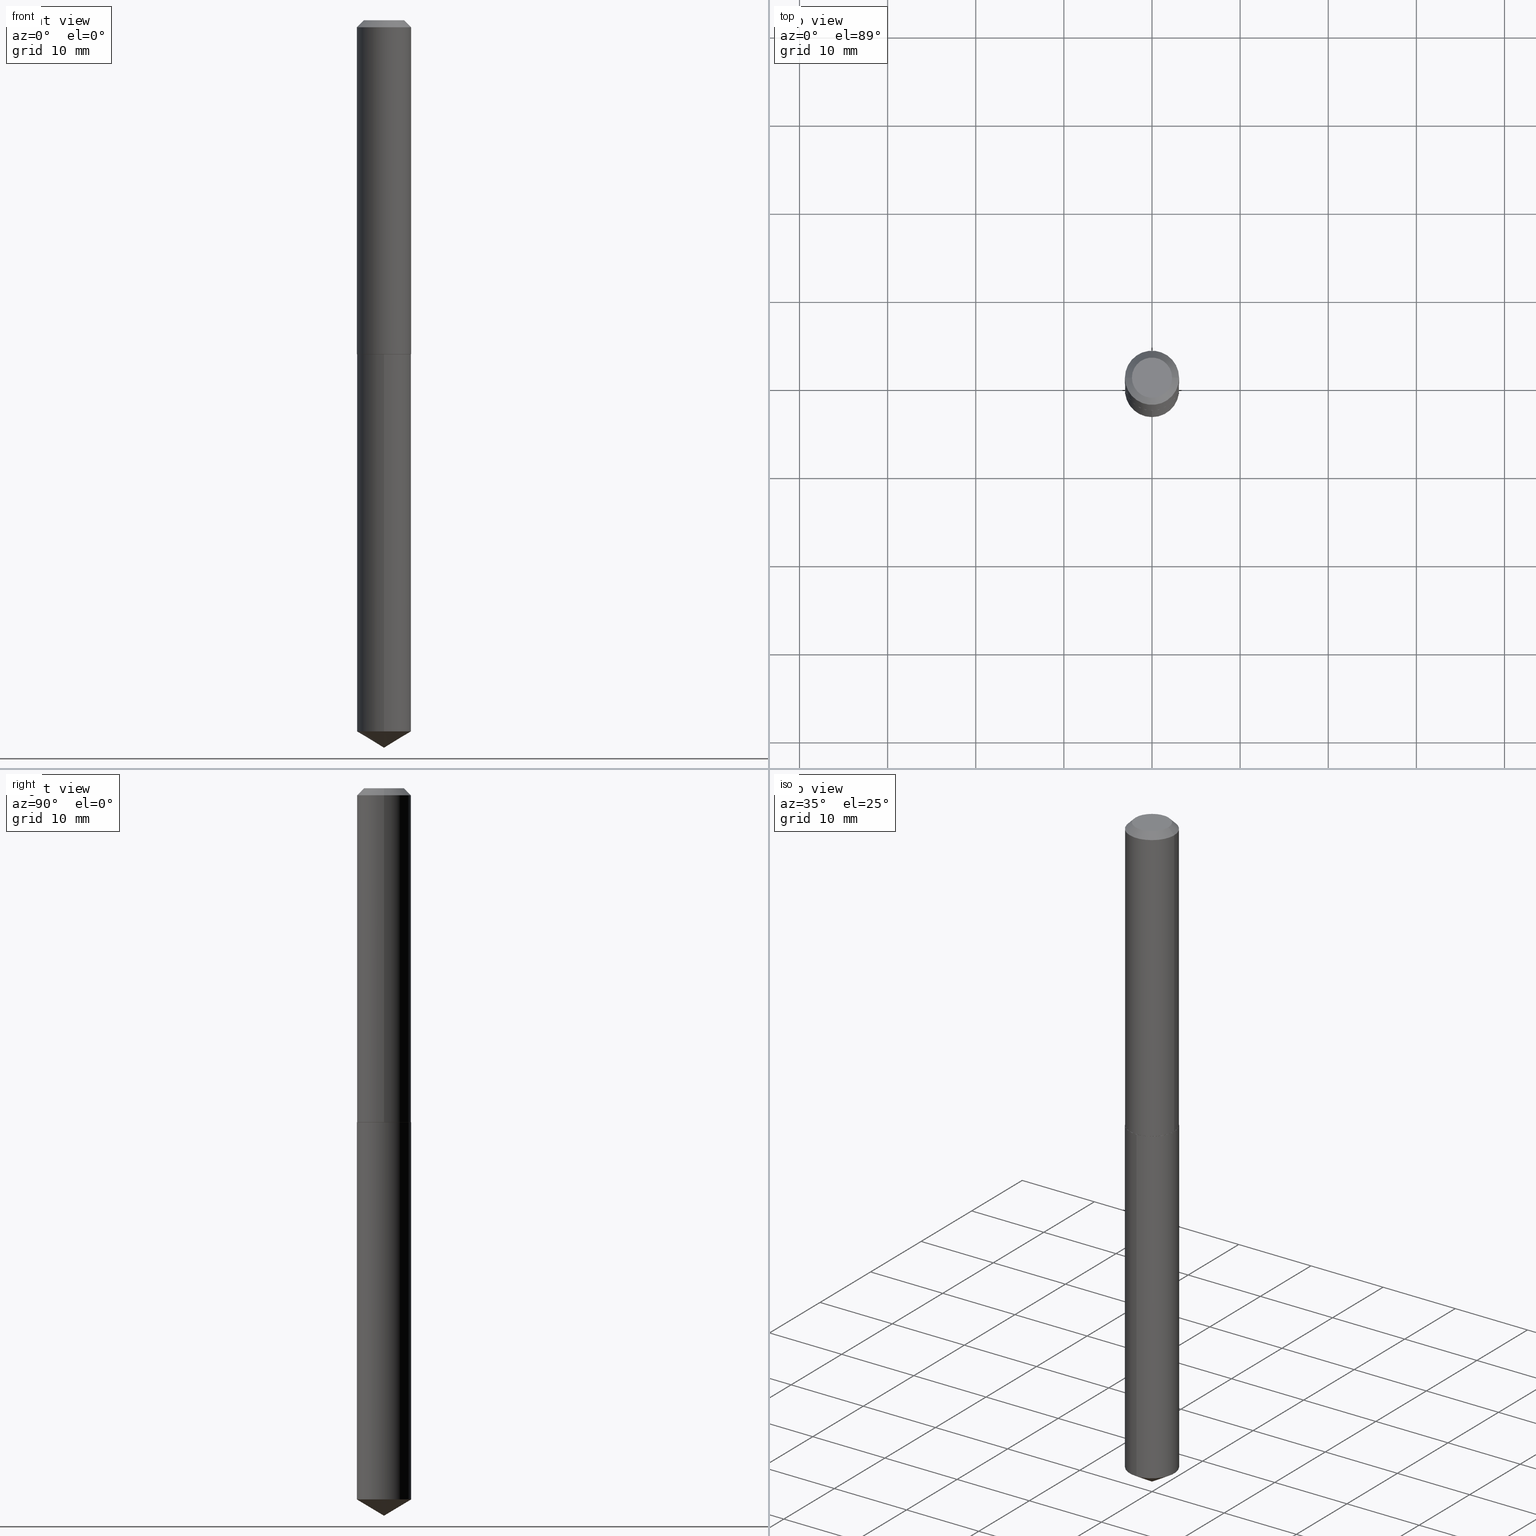
[diagram: canonical four-view strip — front | top / right | iso, engineering-drawing reading convention]
A machine part, canonical four-view strip (front | top / right | iso — engineering-drawing reading convention). The complete STEP part file that produces these views, byte-faithful:
ISO-10303-21;
HEADER;
FILE_DESCRIPTION (( 'STEP AP203' ),
    '1' );
FILE_NAME ('51203.STEP',
    '2024-04-22T18:35:36',
    ( '' ),
    ( '' ),
    'SwSTEP 2.0',
    'SolidWorks 2023',
    '' );
FILE_SCHEMA (( 'CONFIG_CONTROL_DESIGN' ));
ENDSEC;

DATA;
#1 = APPROVAL_DATE_TIME ( #114, #215 ) ;
#2 = CARTESIAN_POINT ( 'NONE',  ( 7.770935132618860075E-29, -1.109209844678102390E-14, -3.177295865097665484 ) ) ;
#3 = CARTESIAN_POINT ( 'NONE',  ( 0.08975000000000001033, -7.774793724345998599E-16, 2.449293598343795834E-19 ) ) ;
#4 = DIRECTION ( 'NONE',  ( -2.446036781530787415E-29, 3.490667965821024294E-15, 1.000000000000000000 ) ) ;
#5 = LINE ( 'NONE', #9, #340 ) ;
#6 = AXIS2_PLACEMENT_3D ( 'NONE', #236, #231, #297 ) ;
#7 = COORDINATED_UNIVERSAL_TIME_OFFSET ( 5, 0, .BEHIND. ) ;
#8 = ORIENTED_EDGE ( 'NONE', *, *, #304, .T. ) ;
#9 = CARTESIAN_POINT ( 'NONE',  ( -0.1210000000000001075, 8.597567102697219885E-16, -5.951911459208441511E-30 ) ) ;
#10 = ADVANCED_FACE ( 'NONE', ( #80 ), #129, .T. ) ;
#11 = CYLINDRICAL_SURFACE ( 'NONE', #95, 0.1210000000000001075 ) ;
#12 =( GEOMETRIC_REPRESENTATION_CONTEXT ( 3 ) GLOBAL_UNCERTAINTY_ASSIGNED_CONTEXT ( ( #371 ) ) GLOBAL_UNIT_ASSIGNED_CONTEXT ( ( #221, #45, #162 ) ) REPRESENTATION_CONTEXT ( 'NONE', 'WORKASPACE' ) );
#13 = PRODUCT_DEFINITION_FORMATION_WITH_SPECIFIED_SOURCE ( 'ANY', '', #201, .NOT_KNOWN. ) ;
#14 = DIRECTION ( 'NONE',  ( 1.000000000000000000, -6.982962677686265922E-15, 0.000000000000000000 ) ) ;
#15 = ORIENTED_EDGE ( 'NONE', *, *, #304, .F. ) ;
#16 = DIRECTION ( 'NONE',  ( 1.000000000000000000, -6.982962677686265922E-15, 4.876176775795935793E-29 ) ) ;
#17 = EDGE_LOOP ( 'NONE', ( #383, #105, #15 ) ) ;
#18 = DIRECTION ( 'NONE',  ( 1.000000000000000000, 0.000000000000000000, 0.000000000000000000 ) ) ;
#19 = EDGE_CURVE ( 'NONE', #108, #369, #52, .T. ) ;
#20 = DIMENSIONAL_EXPONENTS ( 1.000000000000000000, 0.000000000000000000, 0.000000000000000000, 0.000000000000000000, 0.000000000000000000, 0.000000000000000000, 0.000000000000000000 ) ;
#21 = ORIENTED_EDGE ( 'NONE', *, *, #244, .F. ) ;
#22 = AXIS2_PLACEMENT_3D ( 'NONE', #268, #266, #61 ) ;
#23 = AXIS2_PLACEMENT_3D ( 'NONE', #77, #214, #141 ) ;
#24 = ADVANCED_BREP_SHAPE_REPRESENTATION ( '51203', ( #39, #41, #217 ), #12 ) ;
#25 = CARTESIAN_POINT ( 'NONE',  ( 3.647416724425131194E-29, -5.207544416884551827E-15, -1.491500000000000270 ) ) ;
#26 = APPROVAL ( #365, 'UNSPECIFIED' ) ;
#27 = ORIENTED_EDGE ( 'NONE', *, *, #132, .F. ) ;
#28 = VERTEX_POINT ( 'NONE', #48 ) ;
#29 = EDGE_CURVE ( 'NONE', #134, #369, #327, .T. ) ;
#30 = CALENDAR_DATE ( 2024, 22, 4 ) ;
#31 = LINE ( 'NONE', #361, #43 ) ;
#32 = SHAPE_DEFINITION_REPRESENTATION ( #149, #24 ) ;
#33 = CYLINDRICAL_SURFACE ( 'NONE', #334, 0.1210000000000000103 ) ;
#34 = EDGE_CURVE ( 'NONE', #56, #368, #125, .T. ) ;
#35 = DIRECTION ( 'NONE',  ( -2.445468806185136597E-29, 3.491481338843145583E-15, 1.000000000000000000 ) ) ;
#36 = CARTESIAN_POINT ( 'NONE',  ( 8.597567102697990011E-16, 0.1209999999999889081, -3.177295865097665928 ) ) ;
#37 = DIRECTION ( 'NONE',  ( 0.7071067811867647324, -2.468850131084532135E-15, 0.7071067811863303021 ) ) ;
#38 = CARTESIAN_POINT ( 'NONE',  ( -0.1205000000000002597, -4.350436933788939462E-15, -1.491999999999999771 ) ) ;
#39 = MANIFOLD_SOLID_BREP ( 'Body-Move/Copy2[1]', #323 ) ;
#40 = EDGE_CURVE ( 'NONE', #134, #307, #355, .T. ) ;
#41 = MANIFOLD_SOLID_BREP ( 'Body-Move/Copy2[2]', #316 ) ;
#42 = COORDINATED_UNIVERSAL_TIME_OFFSET ( 5, 0, .BEHIND. ) ;
#43 = VECTOR ( 'NONE', #58, 39.37007874015748854 ) ;
#44 = DIRECTION ( 'NONE',  ( -2.446036781530787695E-29, 3.490667965821024294E-15, 1.000000000000000000 ) ) ;
#45 =( NAMED_UNIT ( * ) PLANE_ANGLE_UNIT ( ) SI_UNIT ( $, .RADIAN. ) );
#46 = CONICAL_SURFACE ( 'NONE', #364, 0.1210000000000000242, 0.7853981633974450594 ) ;
#47 = FACE_OUTER_BOUND ( 'NONE', #346, .T. ) ;
#48 = CARTESIAN_POINT ( 'NONE',  ( -8.449384839999604942E-16, -0.1210000000000111126, -3.177295865097664596 ) ) ;
#49 = ADVANCED_FACE ( 'NONE', ( #260 ), #75, .T. ) ;
#50 = ORIENTED_EDGE ( 'NONE', *, *, #66, .T. ) ;
#51 = ADVANCED_FACE ( 'NONE', ( #354 ), #151, .T. ) ;
#52 = LINE ( 'NONE', #103, #258 ) ;
#53 = AXIS2_PLACEMENT_3D ( 'NONE', #306, #107, #16 ) ;
#54 = APPLICATION_PROTOCOL_DEFINITION ( 'international standard', 'config_control_design', 1994, #219 ) ;
#55 = ORIENTED_EDGE ( 'NONE', *, *, #81, .F. ) ;
#56 = VERTEX_POINT ( 'NONE', #88 ) ;
#57 = APPROVAL_ROLE ( '' ) ;
#58 = DIRECTION ( 'NONE',  ( -5.985567269335945224E-15, -0.8571673007021107793, 0.5150380749100564870 ) ) ;
#59 = APPROVAL_PERSON_ORGANIZATION ( #89, #215, #229 ) ;
#60 = CALENDAR_DATE ( 2024, 22, 4 ) ;
#61 = DIRECTION ( 'NONE',  ( 1.000000000000000000, -6.982962677686265922E-15, 0.000000000000000000 ) ) ;
#62 = CARTESIAN_POINT ( 'NONE',  ( 3.648639458828223995E-29, -5.209290157553973331E-15, -1.491999999999999993 ) ) ;
#63 = CC_DESIGN_DATE_AND_TIME_ASSIGNMENT ( #124, #209, ( #163 ) ) ;
#64 = FACE_OUTER_BOUND ( 'NONE', #350, .T. ) ;
#65 = FACE_OUTER_BOUND ( 'NONE', #216, .T. ) ;
#66 = EDGE_CURVE ( 'NONE', #218, #185, #122, .T. ) ;
#67 = APPROVAL_DATE_TIME ( #294, #98 ) ;
#68 = EDGE_LOOP ( 'NONE', ( #167, #382, #248, #338 ) ) ;
#69 = EDGE_CURVE ( 'NONE', #284, #108, #325, .T. ) ;
#70 = DIRECTION ( 'NONE',  ( -2.445468806185136597E-29, 3.491481338843145583E-15, 1.000000000000000000 ) ) ;
#71 = AXIS2_PLACEMENT_3D ( 'NONE', #343, #378, #79 ) ;
#72 = ORIENTED_EDGE ( 'NONE', *, *, #109, .F. ) ;
#73 = DIRECTION ( 'NONE',  ( 0.000000000000000000, 0.000000000000000000, 1.000000000000000000 ) ) ;
#74 = DIRECTION ( 'NONE',  ( 0.7071067811865452413, -7.319954787623248157E-15, -0.7071067811865497932 ) ) ;
#75 = CONICAL_SURFACE ( 'NONE', #292, 0.1210000000000000242, 0.7853981633974450594 ) ;
#76 = CC_DESIGN_APPROVAL ( #215, ( #163 ) ) ;
#77 = CARTESIAN_POINT ( 'NONE',  ( 3.647416724425131194E-29, -5.207544416884551827E-15, -1.491500000000000270 ) ) ;
#78 = ORIENTED_EDGE ( 'NONE', *, *, #19, .F. ) ;
#79 = DIRECTION ( 'NONE',  ( 1.000000000000000000, -6.982962677686267499E-15, 4.876187661634337776E-29 ) ) ;
#80 = FACE_OUTER_BOUND ( 'NONE', #17, .T. ) ;
#81 = EDGE_CURVE ( 'NONE', #218, #28, #31, .T. ) ;
#82 = LINE ( 'NONE', #193, #210 ) ;
#83 = ORIENTED_EDGE ( 'NONE', *, *, #69, .T. ) ;
#84 = DATE_AND_TIME ( #348, #106 ) ;
#85 = ORIENTED_EDGE ( 'NONE', *, *, #137, .F. ) ;
#86 = PERSON_AND_ORGANIZATION_ROLE ( 'creator' ) ;
#87 = PRODUCT_RELATED_PRODUCT_CATEGORY ( 'detail', '', ( #201 ) ) ;
#88 = CARTESIAN_POINT ( 'NONE',  ( 8.597567102697990997E-16, 0.1209999999999947923, -1.492000000000000659 ) ) ;
#89 = PERSON_AND_ORGANIZATION ( #140, #286 ) ;
#90 = DIRECTION ( 'NONE',  ( 6.090539988449780802E-15, 0.8571673007021143320, 0.5150380749100504918 ) ) ;
#91 = CIRCLE ( 'NONE', #207, 0.1210000000000000103 ) ;
#92 = CARTESIAN_POINT ( 'NONE',  ( 8.597567102697576845E-16, 0.1209999999999947923, -1.492000000000000659 ) ) ;
#93 = DIRECTION ( 'NONE',  ( -6.982962677686264344E-15, -1.000000000000000000, 4.515451229197129137E-15 ) ) ;
#94 = DIRECTION ( 'NONE',  ( -2.446036781530787415E-29, 3.490667965821024294E-15, 1.000000000000000000 ) ) ;
#95 = AXIS2_PLACEMENT_3D ( 'NONE', #128, #130, #366 ) ;
#96 = DATE_AND_TIME ( #30, #182 ) ;
#97 = DIRECTION ( 'NONE',  ( -6.982962677686264344E-15, -1.000000000000000000, 4.515451229197129137E-15 ) ) ;
#98 = APPROVAL ( #324, 'UNSPECIFIED' ) ;
#99 = LOCAL_TIME ( 14, 35, 36.00000000000000000, #42 ) ;
#100 = EDGE_LOOP ( 'NONE', ( #379, #226, #299, #85 ) ) ;
#101 = ORIENTED_EDGE ( 'NONE', *, *, #19, .T. ) ;
#102 = CARTESIAN_POINT ( 'NONE',  ( 0.1210000000000000242, -9.540472758388873963E-16, -0.03125000000000020817 ) ) ;
#103 = CARTESIAN_POINT ( 'NONE',  ( 0.1210000000000000242, -9.392290495692044923E-16, -0.03125000000000020817 ) ) ;
#104 = DIRECTION ( 'NONE',  ( -2.446036781530787695E-29, 3.490667965821024294E-15, 1.000000000000000000 ) ) ;
#105 = ORIENTED_EDGE ( 'NONE', *, *, #81, .T. ) ;
#106 = LOCAL_TIME ( 14, 35, 36.00000000000000000, #7 ) ;
#107 = DIRECTION ( 'NONE',  ( -2.438088387897960049E-29, 3.491481338843145188E-15, 1.000000000000000000 ) ) ;
#108 = VERTEX_POINT ( 'NONE', #3 ) ;
#109 = EDGE_CURVE ( 'NONE', #253, #165, #285, .T. ) ;
#110 = PLANE ( 'NONE',  #245 ) ;
#111 = EDGE_LOOP ( 'NONE', ( #78, #190, #195, #257 ) ) ;
#112 = CARTESIAN_POINT ( 'NONE',  ( 3.648639458828223995E-29, -5.209290157553973331E-15, -1.491999999999999993 ) ) ;
#113 = EDGE_LOOP ( 'NONE', ( #241, #223 ) ) ;
#114 = DATE_AND_TIME ( #385, #99 ) ;
#115 = DIRECTION ( 'NONE',  ( 2.445468806185136597E-29, -3.491481338843145583E-15, -1.000000000000000000 ) ) ;
#116 = PERSON_AND_ORGANIZATION_ROLE ( 'design_owner' ) ;
#117 = CARTESIAN_POINT ( 'NONE',  ( 3.648639458828223995E-29, -5.209290157553973331E-15, -1.491999999999999993 ) ) ;
#118 = ADVANCED_FACE ( 'NONE', ( #176 ), #252, .T. ) ;
#119 = DIRECTION ( 'NONE',  ( -2.446036781530787695E-29, 3.490667965821024294E-15, 1.000000000000000000 ) ) ;
#120 = DIRECTION ( 'NONE',  ( 1.000000000000000000, -6.982962677686267499E-15, 4.876187661634337776E-29 ) ) ;
#121 = EDGE_CURVE ( 'NONE', #185, #56, #200, .T. ) ;
#122 = LINE ( 'NONE', #295, #225 ) ;
#123 = CARTESIAN_POINT ( 'NONE',  ( -2.994835545909321190E-48, 4.275831445896965764E-34, 1.224646799147350977E-19 ) ) ;
#124 = DATE_AND_TIME ( #180, #246 ) ;
#125 = CIRCLE ( 'NONE', #302, 0.1210000000000000103 ) ;
#126 = CIRCLE ( 'NONE', #341, 0.1210000000000001907 ) ;
#127 = APPROVAL_PERSON_ORGANIZATION ( #173, #98, #356 ) ;
#128 = CARTESIAN_POINT ( 'NONE',  ( 0.000000000000000000, 0.000000000000000000, 0.000000000000000000 ) ) ;
#129 = CONICAL_SURFACE ( 'NONE', #347, 65.52281426576853107, 1.029744258676655200 ) ;
#130 = DIRECTION ( 'NONE',  ( -2.445468806185136597E-29, 3.491481338843145583E-15, 1.000000000000000000 ) ) ;
#131 = ORIENTED_EDGE ( 'NONE', *, *, #269, .T. ) ;
#132 = EDGE_CURVE ( 'NONE', #307, #134, #126, .T. ) ;
#133 = DIRECTION ( 'NONE',  ( 1.000000000000000000, -6.982962677686265133E-15, 0.000000000000000000 ) ) ;
#134 = VERTEX_POINT ( 'NONE', #235 ) ;
#135 = AXIS2_PLACEMENT_3D ( 'NONE', #123, #367, #298 ) ;
#136 = EDGE_LOOP ( 'NONE', ( #196, #160, #372, #287 ) ) ;
#137 = EDGE_CURVE ( 'NONE', #165, #134, #206, .T. ) ;
#138 = DIRECTION ( 'NONE',  ( 2.446036781530787134E-29, -3.490667965821024294E-15, -1.000000000000000000 ) ) ;
#139 = ORIENTED_EDGE ( 'NONE', *, *, #203, .F. ) ;
#140 = PERSON ( 'UNSPECIFIED', 'UNSPECIFIED', 'UNSPECIFIED', ('UNSPECIFIED'), ('UNSPECIFIED'), ('UNSPECIFIED') ) ;
#141 = DIRECTION ( 'NONE',  ( 1.000000000000000000, -6.982962677686265922E-15, 0.000000000000000000 ) ) ;
#142 = ORIENTED_EDGE ( 'NONE', *, *, #121, .F. ) ;
#143 = DATE_TIME_ROLE ( 'classification_date' ) ;
#144 = DIRECTION ( 'NONE',  ( -2.445468806185136877E-29, 3.491481338843145188E-15, 1.000000000000000000 ) ) ;
#145 = CIRCLE ( 'NONE', #202, 0.1210000000000000103 ) ;
#146 = APPROVAL_STATUS ( 'not_yet_approved' ) ;
#147 = DIRECTION ( 'NONE',  ( -6.982962677686264344E-15, -1.000000000000000000, 4.515451229197129137E-15 ) ) ;
#148 = APPROVAL_DATE_TIME ( #96, #26 ) ;
#149 = PRODUCT_DEFINITION_SHAPE ( 'NONE', 'NONE',  #163 ) ;
#150 = CARTESIAN_POINT ( 'NONE',  ( 0.1210000000000001075, -8.449384840000389859E-16, 5.900173898713087522E-30 ) ) ;
#151 = CYLINDRICAL_SURFACE ( 'NONE', #164, 0.1210000000000001075 ) ;
#152 = CARTESIAN_POINT ( 'NONE',  ( 7.642090019328602662E-31, -1.091087918388490267E-16, -0.03125000000000020817 ) ) ;
#153 = CC_DESIGN_PERSON_AND_ORGANIZATION_ASSIGNMENT ( #199, #272, ( #319 ) ) ;
#154 = PERSON_AND_ORGANIZATION_ROLE ( 'creator' ) ;
#155 = AXIS2_PLACEMENT_3D ( 'NONE', #230, #326, #301 ) ;
#156 = LINE ( 'NONE', #273, #330 ) ;
#157 = DIRECTION ( 'NONE',  ( 1.000000000000000000, -6.982962677686266711E-15, 0.000000000000000000 ) ) ;
#158 = DIRECTION ( 'NONE',  ( -0.7071067811867647324, 7.493145998871139866E-15, 0.7071067811863303021 ) ) ;
#159 = CIRCLE ( 'NONE', #357, 0.1210000000000000103 ) ;
#160 = ORIENTED_EDGE ( 'NONE', *, *, #244, .T. ) ;
#161 = VERTEX_POINT ( 'NONE', #329 ) ;
#162 =( NAMED_UNIT ( * ) SI_UNIT ( $, .STERADIAN. ) SOLID_ANGLE_UNIT ( ) );
#163 = PRODUCT_DEFINITION ( 'UNKNOWN', '', #13, #275 ) ;
#164 = AXIS2_PLACEMENT_3D ( 'NONE', #174, #389, #169 ) ;
#165 = VERTEX_POINT ( 'NONE', #386 ) ;
#166 = CARTESIAN_POINT ( 'NONE',  ( 3.648639458828223995E-29, -5.209290157553973331E-15, -1.491999999999999993 ) ) ;
#167 = ORIENTED_EDGE ( 'NONE', *, *, #203, .T. ) ;
#168 = PERSON_AND_ORGANIZATION ( #140, #286 ) ;
#169 = DIRECTION ( 'NONE',  ( 1.000000000000000000, -6.982962677686266711E-15, 4.876176775795935793E-29 ) ) ;
#170 = COORDINATED_UNIVERSAL_TIME_OFFSET ( 5, 0, .BEHIND. ) ;
#171 = DIRECTION ( 'NONE',  ( -1.000000000000000000, 6.982962677686266711E-15, 0.000000000000000000 ) ) ;
#172 = VECTOR ( 'NONE', #94, 39.37007874015748143 ) ;
#173 = PERSON_AND_ORGANIZATION ( #140, #286 ) ;
#174 = CARTESIAN_POINT ( 'NONE',  ( 0.000000000000000000, 0.000000000000000000, 0.000000000000000000 ) ) ;
#175 = DIRECTION ( 'NONE',  ( -6.982962677686264344E-15, -1.000000000000000000, 4.515451229197129137E-15 ) ) ;
#176 = FACE_OUTER_BOUND ( 'NONE', #289, .T. ) ;
#177 = AXIS2_PLACEMENT_3D ( 'NONE', #179, #333, #97 ) ;
#178 = PLANE ( 'NONE',  #135 ) ;
#179 = CARTESIAN_POINT ( 'NONE',  ( 3.648639458828223995E-29, -5.209290157553973331E-15, -1.491999999999999993 ) ) ;
#180 = CALENDAR_DATE ( 2024, 22, 4 ) ;
#181 = CONICAL_SURFACE ( 'NONE', #23, 0.1210000000000001907, 0.7853981633977554777 ) ;
#182 = LOCAL_TIME ( 14, 35, 36.00000000000000000, #170 ) ;
#183 = CYLINDRICAL_SURFACE ( 'NONE', #177, 0.1210000000000000103 ) ;
#184 = DIRECTION ( 'NONE',  ( -2.445468806185136597E-29, 3.491481338843145583E-15, 1.000000000000000000 ) ) ;
#185 = VERTEX_POINT ( 'NONE', #36 ) ;
#186 = DIRECTION ( 'NONE',  ( 6.982962677686265922E-15, 1.000000000000000000, -3.490667965821024294E-15 ) ) ;
#187 = VECTOR ( 'NONE', #4, 39.37007874015748143 ) ;
#188 = EDGE_LOOP ( 'NONE', ( #21, #251, #192, #281 ) ) ;
#189 = CARTESIAN_POINT ( 'NONE',  ( 3.648639458828223435E-29, -5.209290157553972542E-15, -1.491999999999999771 ) ) ;
#190 = ORIENTED_EDGE ( 'NONE', *, *, #69, .F. ) ;
#191 = DIRECTION ( 'NONE',  ( -6.982962677686264344E-15, -1.000000000000000000, 4.515451229197129137E-15 ) ) ;
#192 = ORIENTED_EDGE ( 'NONE', *, *, #29, .T. ) ;
#193 = CARTESIAN_POINT ( 'NONE',  ( -0.1210000000000001907, -4.347787706614829839E-15, -1.491500000000000270 ) ) ;
#194 = CIRCLE ( 'NONE', #155, 0.1210000000000000242 ) ;
#195 = ORIENTED_EDGE ( 'NONE', *, *, #300, .T. ) ;
#196 = ORIENTED_EDGE ( 'NONE', *, *, #40, .T. ) ;
#197 = PERSON_AND_ORGANIZATION ( #140, #286 ) ;
#198 = DIRECTION ( 'NONE',  ( 2.445468806185136597E-29, -3.491481338843145583E-15, -1.000000000000000000 ) ) ;
#199 = PERSON_AND_ORGANIZATION ( #140, #286 ) ;
#200 = LINE ( 'NONE', #92, #172 ) ;
#201 = PRODUCT ( '51203', '51203', '', ( #254 ) ) ;
#202 = AXIS2_PLACEMENT_3D ( 'NONE', #112, #104, #191 ) ;
#203 = EDGE_CURVE ( 'NONE', #28, #185, #91, .T. ) ;
#204 = CARTESIAN_POINT ( 'NONE',  ( 3.647416724425131194E-29, -5.207544416884551827E-15, -1.491500000000000270 ) ) ;
#205 = CARTESIAN_POINT ( 'NONE',  ( -5.989671091818642381E-48, 8.551662891793931527E-34, 2.449293598294701954E-19 ) ) ;
#206 = LINE ( 'NONE', #262, #309 ) ;
#207 = AXIS2_PLACEMENT_3D ( 'NONE', #2, #360, #93 ) ;
#208 = CARTESIAN_POINT ( 'NONE',  ( -0.08975000000000001033, 6.812752962417660252E-16, 2.449293598248967377E-19 ) ) ;
#209 = DATE_TIME_ROLE ( 'creation_date' ) ;
#210 = VECTOR ( 'NONE', #158, 39.37007874015748143 ) ;
#211 = CC_DESIGN_APPROVAL ( #26, ( #13 ) ) ;
#212 = DIRECTION ( 'NONE',  ( -0.7071067811865452413, 2.468850131082233000E-15, -0.7071067811865497932 ) ) ;
#213 = CARTESIAN_POINT ( 'NONE',  ( -8.449384840000016136E-16, -0.1210000000000052145, -1.491999999999999549 ) ) ;
#214 = DIRECTION ( 'NONE',  ( -2.445468806185136597E-29, 3.491481338843145583E-15, 1.000000000000000000 ) ) ;
#215 = APPROVAL ( #146, 'UNSPECIFIED' ) ;
#216 = EDGE_LOOP ( 'NONE', ( #83, #255 ) ) ;
#217 = AXIS2_PLACEMENT_3D ( 'NONE', #283, #73, #18 ) ;
#218 = VERTEX_POINT ( 'NONE', #328 ) ;
#219 = APPLICATION_CONTEXT ( 'configuration controlled 3d designs of mechanical parts and assemblies' ) ;
#220 = ADVANCED_FACE ( 'NONE', ( #64 ), #46, .T. ) ;
#221 =( CONVERSION_BASED_UNIT ( 'INCH', #280 ) LENGTH_UNIT ( ) NAMED_UNIT ( #20 ) );
#222 = ORIENTED_EDGE ( 'NONE', *, *, #337, .F. ) ;
#223 = ORIENTED_EDGE ( 'NONE', *, *, #34, .T. ) ;
#224 = ADVANCED_FACE ( 'NONE', ( #388 ), #33, .T. ) ;
#225 = VECTOR ( 'NONE', #90, 39.37007874015748854 ) ;
#226 = ORIENTED_EDGE ( 'NONE', *, *, #359, .T. ) ;
#227 = PERSON_AND_ORGANIZATION ( #140, #286 ) ;
#228 = DIRECTION ( 'NONE',  ( 1.000000000000000000, -6.982962677686265133E-15, 0.000000000000000000 ) ) ;
#229 = APPROVAL_ROLE ( '' ) ;
#230 = CARTESIAN_POINT ( 'NONE',  ( 7.642090019328602662E-31, -1.091087918388490267E-16, -0.03125000000000020817 ) ) ;
#231 = DIRECTION ( 'NONE',  ( -2.446036781530787695E-29, 3.490667965821024294E-15, 1.000000000000000000 ) ) ;
#232 = AXIS2_PLACEMENT_3D ( 'NONE', #189, #256, #133 ) ;
#233 = APPROVAL_PERSON_ORGANIZATION ( #261, #26, #57 ) ;
#234 = CC_DESIGN_PERSON_AND_ORGANIZATION_ASSIGNMENT ( #227, #116, ( #201 ) ) ;
#235 = CARTESIAN_POINT ( 'NONE',  ( 0.1210000000000001907, -6.052482900884591109E-15, -1.491500000000000270 ) ) ;
#236 = CARTESIAN_POINT ( 'NONE',  ( -8.835188856942914268E-28, 1.260819882286517241E-13, 36.12007874015748143 ) ) ;
#237 = EDGE_CURVE ( 'NONE', #161, #369, #194, .T. ) ;
#238 = VECTOR ( 'NONE', #144, 39.37007874015748143 ) ;
#239 = AXIS2_PLACEMENT_3D ( 'NONE', #322, #35, #228 ) ;
#240 = PERSON_AND_ORGANIZATION ( #140, #286 ) ;
#241 = ORIENTED_EDGE ( 'NONE', *, *, #313, .T. ) ;
#242 = LINE ( 'NONE', #213, #187 ) ;
#243 = ORIENTED_EDGE ( 'NONE', *, *, #137, .T. ) ;
#244 = EDGE_CURVE ( 'NONE', #307, #161, #5, .T. ) ;
#245 = AXIS2_PLACEMENT_3D ( 'NONE', #166, #138, #186 ) ;
#246 = LOCAL_TIME ( 14, 35, 36.00000000000000000, #387 ) ;
#247 = CC_DESIGN_PERSON_AND_ORGANIZATION_ASSIGNMENT ( #240, #86, ( #163 ) ) ;
#248 = ORIENTED_EDGE ( 'NONE', *, *, #313, .F. ) ;
#249 = CARTESIAN_POINT ( 'NONE',  ( -8.449384840000016136E-16, -0.1210000000000052145, -1.491999999999999549 ) ) ;
#250 = EDGE_CURVE ( 'NONE', #369, #161, #303, .T. ) ;
#251 = ORIENTED_EDGE ( 'NONE', *, *, #132, .T. ) ;
#252 = CONICAL_SURFACE ( 'NONE', #6, 65.52281426576853107, 1.029744258676655200 ) ;
#253 = VERTEX_POINT ( 'NONE', #38 ) ;
#254 = MECHANICAL_CONTEXT ( 'NONE', #219, 'mechanical' ) ;
#255 = ORIENTED_EDGE ( 'NONE', *, *, #376, .T. ) ;
#256 = DIRECTION ( 'NONE',  ( -2.445468806185136597E-29, 3.491481338843145583E-15, 1.000000000000000000 ) ) ;
#257 = ORIENTED_EDGE ( 'NONE', *, *, #237, .T. ) ;
#258 = VECTOR ( 'NONE', #74, 39.37007874015748143 ) ;
#259 = AXIS2_PLACEMENT_3D ( 'NONE', #274, #70, #157 ) ;
#260 = FACE_OUTER_BOUND ( 'NONE', #111, .T. ) ;
#261 = PERSON_AND_ORGANIZATION ( #140, #286 ) ;
#262 = CARTESIAN_POINT ( 'NONE',  ( 0.1210000000000001907, -6.052482900884591109E-15, -1.491500000000000270 ) ) ;
#263 = APPLICATION_PROTOCOL_DEFINITION ( 'international standard', 'config_control_design', 1994, #282 ) ;
#264 = DIRECTION ( 'NONE',  ( -1.000000000000000000, 6.982962677686266711E-15, 0.000000000000000000 ) ) ;
#265 = ADVANCED_FACE ( 'NONE', ( #270 ), #11, .T. ) ;
#266 = DIRECTION ( 'NONE',  ( -2.445468806185136597E-29, 3.491481338843145583E-15, 1.000000000000000000 ) ) ;
#267 = CONICAL_SURFACE ( 'NONE', #317, 0.1210000000000001907, 0.7853981633977554777 ) ;
#268 = CARTESIAN_POINT ( 'NONE',  ( 3.647416724425131194E-29, -5.207544416884551827E-15, -1.491500000000000270 ) ) ;
#269 = EDGE_CURVE ( 'NONE', #28, #368, #242, .T. ) ;
#270 = FACE_OUTER_BOUND ( 'NONE', #188, .T. ) ;
#271 = CC_DESIGN_APPROVAL ( #98, ( #319 ) ) ;
#272 = PERSON_AND_ORGANIZATION_ROLE ( 'classification_officer' ) ;
#273 = CARTESIAN_POINT ( 'NONE',  ( -0.1210000000000000242, 7.358296921611892936E-16, -0.03125000000000020817 ) ) ;
#274 = CARTESIAN_POINT ( 'NONE',  ( 7.642090019328602662E-31, -1.091087918388490267E-16, -0.03125000000000020817 ) ) ;
#275 = DESIGN_CONTEXT ( 'detailed design', #282, 'design' ) ;
#276 = CC_DESIGN_DATE_AND_TIME_ASSIGNMENT ( #84, #143, ( #319 ) ) ;
#277 = AXIS2_PLACEMENT_3D ( 'NONE', #205, #290, #120 ) ;
#278 = DIRECTION ( 'NONE',  ( -2.446036781530787695E-29, 3.490667965821024294E-15, 1.000000000000000000 ) ) ;
#279 = ADVANCED_FACE ( 'NONE', ( #65 ), #178, .F. ) ;
#280 = LENGTH_MEASURE_WITH_UNIT ( LENGTH_MEASURE( 0.02539999999999999897 ), #318 );
#281 = ORIENTED_EDGE ( 'NONE', *, *, #237, .F. ) ;
#282 = APPLICATION_CONTEXT ( 'configuration controlled 3d designs of mechanical parts and assemblies' ) ;
#283 = CARTESIAN_POINT ( 'NONE',  ( 0.000000000000000000, 0.000000000000000000, 0.000000000000000000 ) ) ;
#284 = VERTEX_POINT ( 'NONE', #208 ) ;
#285 = CIRCLE ( 'NONE', #239, 0.1205000000000002597 ) ;
#286 = ORGANIZATION ( 'UNSPECIFIED', 'UNSPECIFIED', '' ) ;
#287 = ORIENTED_EDGE ( 'NONE', *, *, #29, .F. ) ;
#288 = ADVANCED_FACE ( 'NONE', ( #331 ), #183, .T. ) ;
#289 = EDGE_LOOP ( 'NONE', ( #55, #50, #139 ) ) ;
#290 = DIRECTION ( 'NONE',  ( -2.445468806185136597E-29, 3.491481338843145583E-15, 1.000000000000000000 ) ) ;
#291 = COORDINATED_UNIVERSAL_TIME_OFFSET ( 5, 0, .BEHIND. ) ;
#292 = AXIS2_PLACEMENT_3D ( 'NONE', #358, #115, #264 ) ;
#293 = DIRECTION ( 'NONE',  ( -2.446036781530787695E-29, 3.490667965821024294E-15, 1.000000000000000000 ) ) ;
#294 = DATE_AND_TIME ( #60, #349 ) ;
#295 = CARTESIAN_POINT ( 'NONE',  ( 7.949634401707508134E-29, -1.134467088891832856E-14, -3.250000000000000000 ) ) ;
#296 = DIRECTION ( 'NONE',  ( 1.000000000000000000, -6.982962677686265922E-15, 0.000000000000000000 ) ) ;
#297 = DIRECTION ( 'NONE',  ( -6.982962677686267499E-15, -1.000000000000000000, 3.468864327941589087E-15 ) ) ;
#298 = DIRECTION ( 'NONE',  ( -1.000000000000000000, 6.982962677686265922E-15, -4.876176775795935793E-29 ) ) ;
#299 = ORIENTED_EDGE ( 'NONE', *, *, #40, .F. ) ;
#300 = EDGE_CURVE ( 'NONE', #284, #161, #156, .T. ) ;
#301 = DIRECTION ( 'NONE',  ( 1.000000000000000000, -6.982962677686266711E-15, 0.000000000000000000 ) ) ;
#302 = AXIS2_PLACEMENT_3D ( 'NONE', #62, #119, #175 ) ;
#303 = CIRCLE ( 'NONE', #259, 0.1210000000000000242 ) ;
#304 = EDGE_CURVE ( 'NONE', #185, #28, #159, .T. ) ;
#305 = CARTESIAN_POINT ( 'NONE',  ( 7.770935132618860075E-29, -1.109209844678102390E-14, -3.177295865097665484 ) ) ;
#306 = CARTESIAN_POINT ( 'NONE',  ( 6.010629311994819779E-29, -1.826786251705777733E-15, -1.491999999999999771 ) ) ;
#307 = VERTEX_POINT ( 'NONE', #345 ) ;
#308 = ADVANCED_FACE ( 'NONE', ( #310 ), #110, .F. ) ;
#309 = VECTOR ( 'NONE', #37, 39.37007874015748143 ) ;
#310 = FACE_OUTER_BOUND ( 'NONE', #113, .T. ) ;
#311 = EDGE_LOOP ( 'NONE', ( #222, #72 ) ) ;
#312 = ORIENTED_EDGE ( 'NONE', *, *, #376, .F. ) ;
#313 = EDGE_CURVE ( 'NONE', #368, #56, #145, .T. ) ;
#314 = FACE_OUTER_BOUND ( 'NONE', #311, .T. ) ;
#315 = DIRECTION ( 'NONE',  ( -6.982962677686267499E-15, -1.000000000000000000, 3.468864327941589087E-15 ) ) ;
#316 = CLOSED_SHELL ( 'NONE', ( #220, #51, #332, #390, #380, #265, #49, #279 ) ) ;
#317 = AXIS2_PLACEMENT_3D ( 'NONE', #25, #184, #14 ) ;
#318 =( LENGTH_UNIT ( ) NAMED_UNIT ( * ) SI_UNIT ( $, .METRE. ) );
#319 = SECURITY_CLASSIFICATION ( '', '', #351 ) ;
#320 = ORIENTED_EDGE ( 'NONE', *, *, #250, .T. ) ;
#321 = CARTESIAN_POINT ( 'NONE',  ( -8.835188856942914268E-28, 1.260819882286517241E-13, 36.12007874015748143 ) ) ;
#322 = CARTESIAN_POINT ( 'NONE',  ( 3.648639458828223435E-29, -5.209290157553972542E-15, -1.491999999999999771 ) ) ;
#323 = CLOSED_SHELL ( 'NONE', ( #288, #118, #10, #224, #308 ) ) ;
#324 = APPROVAL_STATUS ( 'not_yet_approved' ) ;
#325 = CIRCLE ( 'NONE', #277, 0.08975000000000001033 ) ;
#326 = DIRECTION ( 'NONE',  ( -2.445468806185136597E-29, 3.491481338843145583E-15, 1.000000000000000000 ) ) ;
#327 = LINE ( 'NONE', #150, #238 ) ;
#328 = CARTESIAN_POINT ( 'NONE',  ( 7.949619539975060429E-29, -1.134467088891832856E-14, -3.250000000000000000 ) ) ;
#329 = CARTESIAN_POINT ( 'NONE',  ( -0.1210000000000000242, -1.798569894091978081E-15, -0.03125000000000020817 ) ) ;
#330 = VECTOR ( 'NONE', #212, 39.37007874015748143 ) ;
#331 = FACE_OUTER_BOUND ( 'NONE', #68, .T. ) ;
#332 = ADVANCED_FACE ( 'NONE', ( #336 ), #181, .T. ) ;
#333 = DIRECTION ( 'NONE',  ( -2.446036781530787695E-29, 3.490667965821024294E-15, 1.000000000000000000 ) ) ;
#334 = AXIS2_PLACEMENT_3D ( 'NONE', #117, #293, #147 ) ;
#335 = CC_DESIGN_PERSON_AND_ORGANIZATION_ASSIGNMENT ( #168, #154, ( #13 ) ) ;
#336 = FACE_OUTER_BOUND ( 'NONE', #100, .T. ) ;
#337 = EDGE_CURVE ( 'NONE', #165, #253, #384, .T. ) ;
#338 = ORIENTED_EDGE ( 'NONE', *, *, #269, .F. ) ;
#339 = EDGE_LOOP ( 'NONE', ( #142, #8, #131, #375 ) ) ;
#340 = VECTOR ( 'NONE', #363, 39.37007874015748143 ) ;
#341 = AXIS2_PLACEMENT_3D ( 'NONE', #204, #352, #296 ) ;
#342 = ORIENTED_EDGE ( 'NONE', *, *, #300, .F. ) ;
#343 = CARTESIAN_POINT ( 'NONE',  ( -5.989671091818642381E-48, 8.551662891793931527E-34, 2.449293598294701954E-19 ) ) ;
#344 = ORIENTED_EDGE ( 'NONE', *, *, #359, .F. ) ;
#345 = CARTESIAN_POINT ( 'NONE',  ( -0.1210000000000001907, -4.347787706614829839E-15, -1.491500000000000270 ) ) ;
#346 = EDGE_LOOP ( 'NONE', ( #344, #373, #243, #27 ) ) ;
#347 = AXIS2_PLACEMENT_3D ( 'NONE', #321, #278, #315 ) ;
#348 = CALENDAR_DATE ( 2024, 22, 4 ) ;
#349 = LOCAL_TIME ( 14, 35, 36.00000000000000000, #291 ) ;
#350 = EDGE_LOOP ( 'NONE', ( #312, #101, #320, #342 ) ) ;
#351 = SECURITY_CLASSIFICATION_LEVEL ( 'unclassified' ) ;
#352 = DIRECTION ( 'NONE',  ( -2.445468806185136597E-29, 3.491481338843145583E-15, 1.000000000000000000 ) ) ;
#353 = PERSON_AND_ORGANIZATION_ROLE ( 'design_supplier' ) ;
#354 = FACE_OUTER_BOUND ( 'NONE', #136, .T. ) ;
#355 = CIRCLE ( 'NONE', #22, 0.1210000000000001907 ) ;
#356 = APPROVAL_ROLE ( '' ) ;
#357 = AXIS2_PLACEMENT_3D ( 'NONE', #305, #44, #381 ) ;
#358 = CARTESIAN_POINT ( 'NONE',  ( 7.642090019328602662E-31, -1.091087918388490267E-16, -0.03125000000000020817 ) ) ;
#359 = EDGE_CURVE ( 'NONE', #253, #307, #82, .T. ) ;
#360 = DIRECTION ( 'NONE',  ( -2.446036781530787695E-29, 3.490667965821024294E-15, 1.000000000000000000 ) ) ;
#361 = CARTESIAN_POINT ( 'NONE',  ( 7.947924701543638175E-29, -1.134709799401634064E-14, -3.250000000000000000 ) ) ;
#362 = CC_DESIGN_PERSON_AND_ORGANIZATION_ASSIGNMENT ( #197, #353, ( #13 ) ) ;
#363 = DIRECTION ( 'NONE',  ( -2.445468806185136877E-29, 3.491481338843145188E-15, 1.000000000000000000 ) ) ;
#364 = AXIS2_PLACEMENT_3D ( 'NONE', #152, #198, #171 ) ;
#365 = APPROVAL_STATUS ( 'not_yet_approved' ) ;
#366 = DIRECTION ( 'NONE',  ( 1.000000000000000000, -6.982962677686266711E-15, 4.876176775795935793E-29 ) ) ;
#367 = DIRECTION ( 'NONE',  ( 2.438088387897960049E-29, -3.491481338843145188E-15, -1.000000000000000000 ) ) ;
#368 = VERTEX_POINT ( 'NONE', #249 ) ;
#369 = VERTEX_POINT ( 'NONE', #102 ) ;
#370 = CIRCLE ( 'NONE', #71, 0.08975000000000001033 ) ;
#371 = UNCERTAINTY_MEASURE_WITH_UNIT (LENGTH_MEASURE( 1.000000000000000082E-05 ), #221, 'distance_accuracy_value', 'NONE');
#372 = ORIENTED_EDGE ( 'NONE', *, *, #250, .F. ) ;
#373 = ORIENTED_EDGE ( 'NONE', *, *, #109, .T. ) ;
#374 = PLANE ( 'NONE',  #53 ) ;
#375 = ORIENTED_EDGE ( 'NONE', *, *, #34, .F. ) ;
#376 = EDGE_CURVE ( 'NONE', #108, #284, #370, .T. ) ;
#377 = CC_DESIGN_SECURITY_CLASSIFICATION ( #319, ( #13 ) ) ;
#378 = DIRECTION ( 'NONE',  ( -2.445468806185136597E-29, 3.491481338843145583E-15, 1.000000000000000000 ) ) ;
#379 = ORIENTED_EDGE ( 'NONE', *, *, #337, .T. ) ;
#380 = ADVANCED_FACE ( 'NONE', ( #47 ), #267, .T. ) ;
#381 = DIRECTION ( 'NONE',  ( -6.982962677686264344E-15, -1.000000000000000000, 4.515451229197129137E-15 ) ) ;
#382 = ORIENTED_EDGE ( 'NONE', *, *, #121, .T. ) ;
#383 = ORIENTED_EDGE ( 'NONE', *, *, #66, .F. ) ;
#384 = CIRCLE ( 'NONE', #232, 0.1205000000000002597 ) ;
#385 = CALENDAR_DATE ( 2024, 22, 4 ) ;
#386 = CARTESIAN_POINT ( 'NONE',  ( 0.1205000000000002597, -6.050737160215168816E-15, -1.491999999999999771 ) ) ;
#387 = COORDINATED_UNIVERSAL_TIME_OFFSET ( 5, 0, .BEHIND. ) ;
#388 = FACE_OUTER_BOUND ( 'NONE', #339, .T. ) ;
#389 = DIRECTION ( 'NONE',  ( -2.445468806185136597E-29, 3.491481338843145583E-15, 1.000000000000000000 ) ) ;
#390 = ADVANCED_FACE ( 'NONE', ( #314 ), #374, .F. ) ;
ENDSEC;
END-ISO-10303-21;
